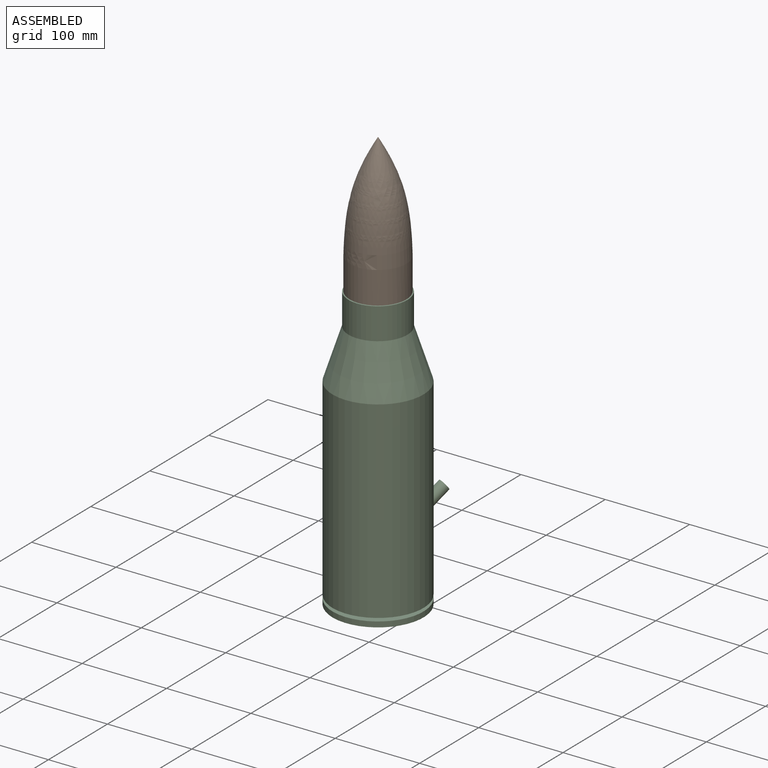
[diagram: assembled view]
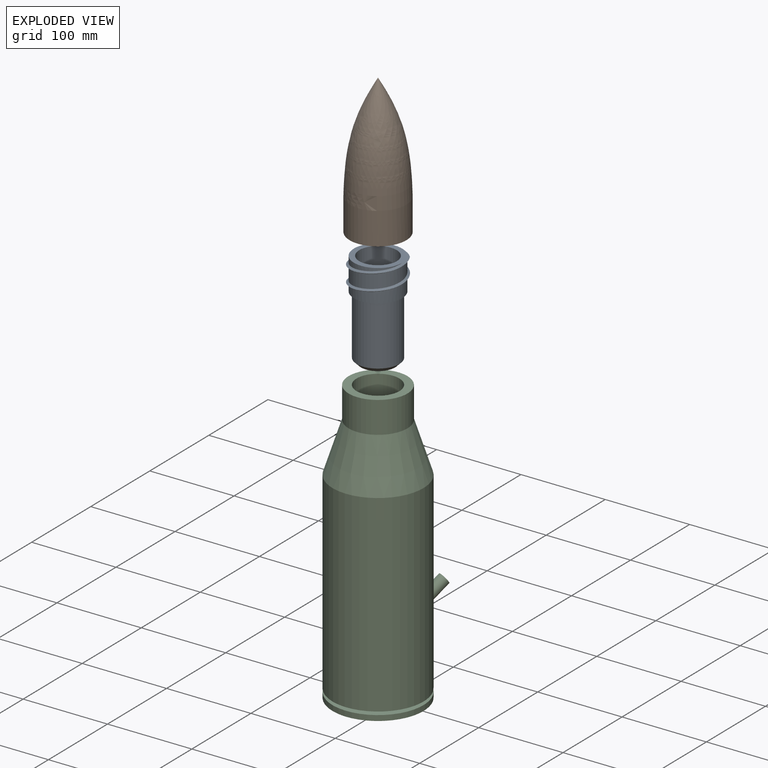
[diagram: exploded view]
GUIDED TOUR — MATED ASSEMBLY (Onshape document 4f5fb4d5b4be294fd91af29c, AutoMate assembly 4f5fb4d5b4be294fd91af29c_5ae8475b313ed0483757e820_fd76b3d57cff5a007c0db33c_default)

This assembly has 3 components, labeled P0..P2 below (a component is one placed occurrence of a part; the same part can appear more than once), held together by 2 mates. A mate is a constraint between two components; its type names the relative motion it leaves free:
  CYLINDRICAL — leaves both rotation about and translation along the listed axis free,
  SLIDER — leaves translation along the listed axis free.
Axis/direction vectors are unit vectors and 'through' points are millimeter coordinates, both in the assembly's world frame.

MATES
  1. SLIDER "Slider 1": P0 <-> P2, axis (0.000, 0.000, -1.000) through (290.09, -513.39, -215.30) mm
  2. CYLINDRICAL "Cylindrical 1": P1 <-> P0, axis (0.000, 0.000, -1.000) through (290.09, -513.39, -138.84) mm

ASSEMBLY ORDER
  1. P0 — the base component [order heuristic]
  2. P1 [order heuristic]
  3. P2 [order heuristic]
Order-tag legend:
  [order heuristic] — this assembly is geometrically interlocked (no collision-free removal order exists), so components are listed in mate-graph order; insertion feasibility is not verified.

Of the 3 components, 1 carries the full construction recipe — the FeatureScript program that regenerates the part's solid from scratch; the rest are supplied as boundary geometry only.
Each toured component is shown spotlighted twice — in the assembled view, then in the exploded view, where a leader line traces a displaced component back to its assembled socket (saturated green if recipe-attached, orange if geometry-only; every other component desaturated gray) — followed by its recipe or geometry summary and the mates that hold it.
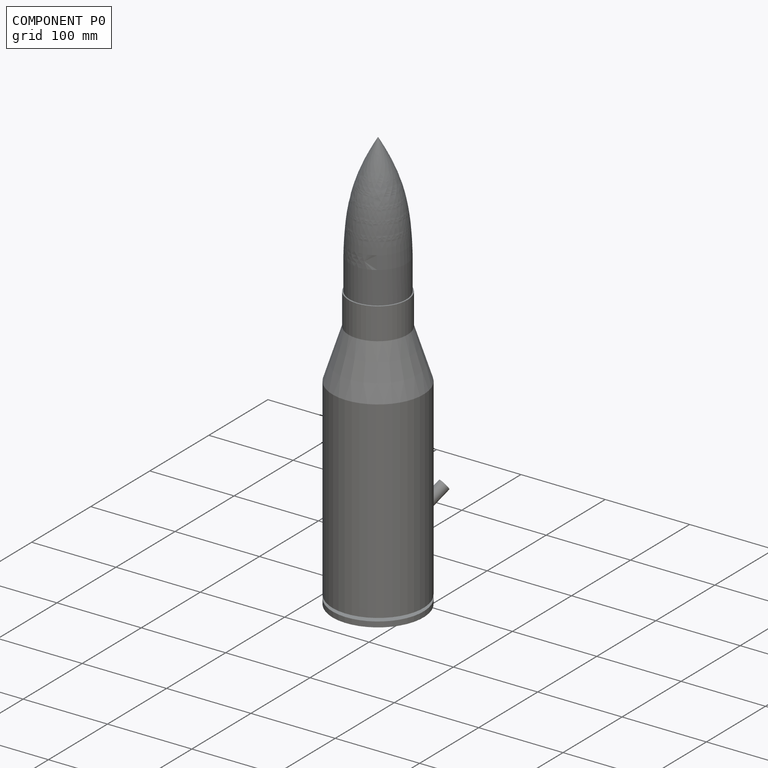
[diagram: component P0 — assembled]
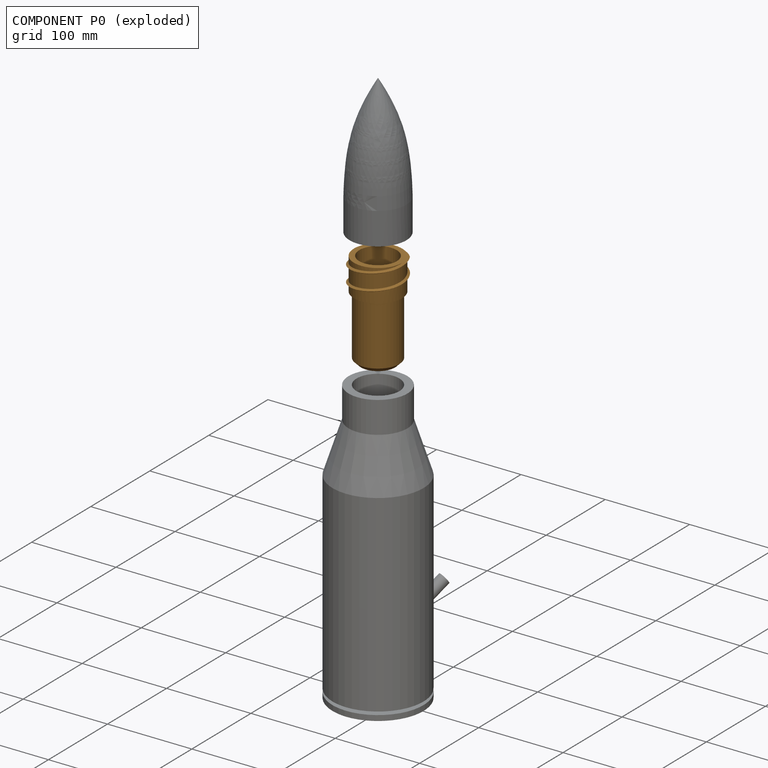
[diagram: component P0 — exploded]
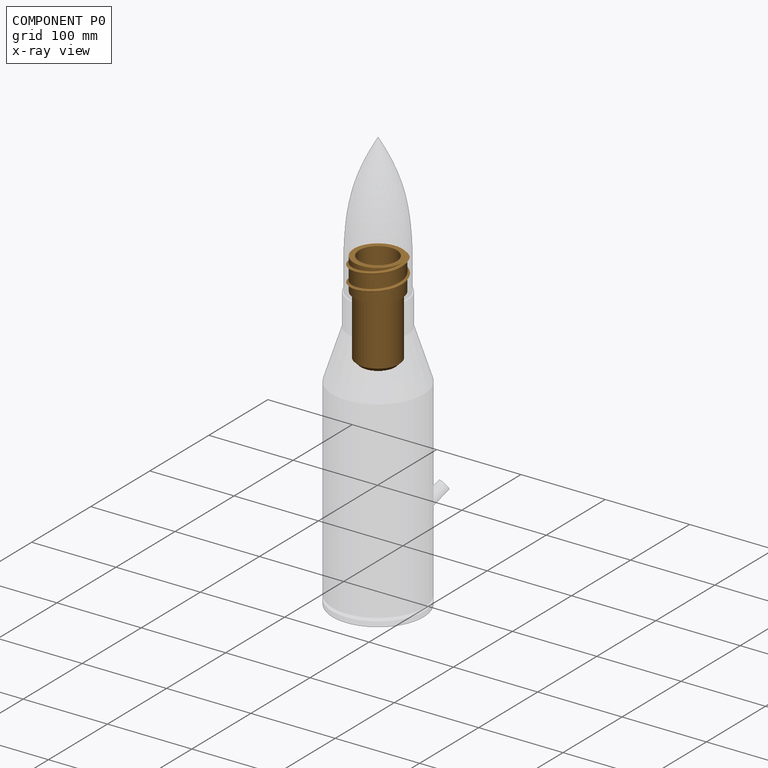
[diagram: component P0 — x-ray view]
COMPONENT P0 — geometry summary (no construction recipe available for this part):
  bounding box: 116.3 x 65.4 x 62.2 mm
  B-rep topology: 1 solid, 13 faces, 50 edges
  volume: 79113 mm^3 (17% of its bounding box)
Held by: SLIDER mate "Slider 1" to P2; CYLINDRICAL mate "Cylindrical 1" to P1.
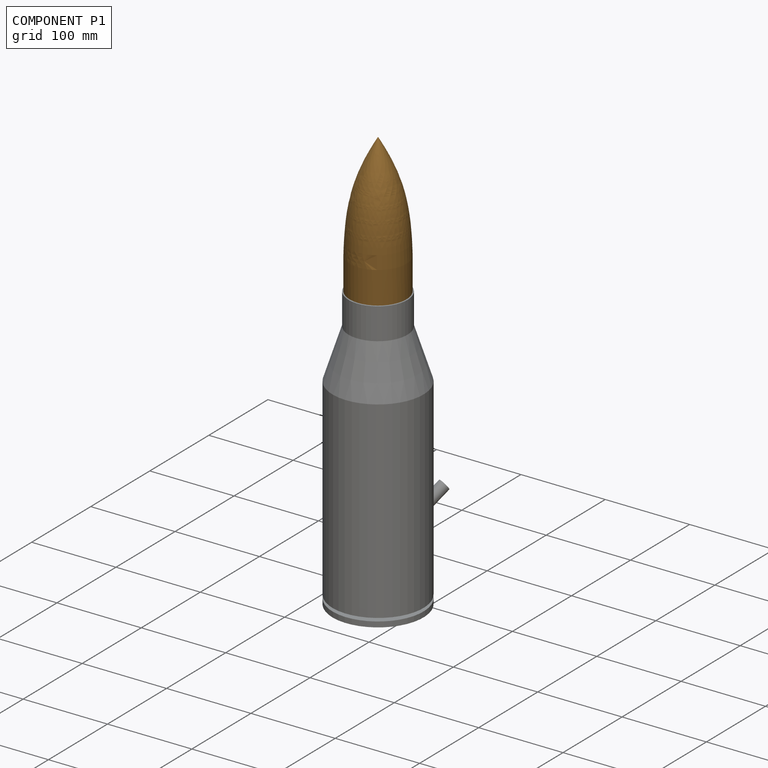
[diagram: component P1 — assembled]
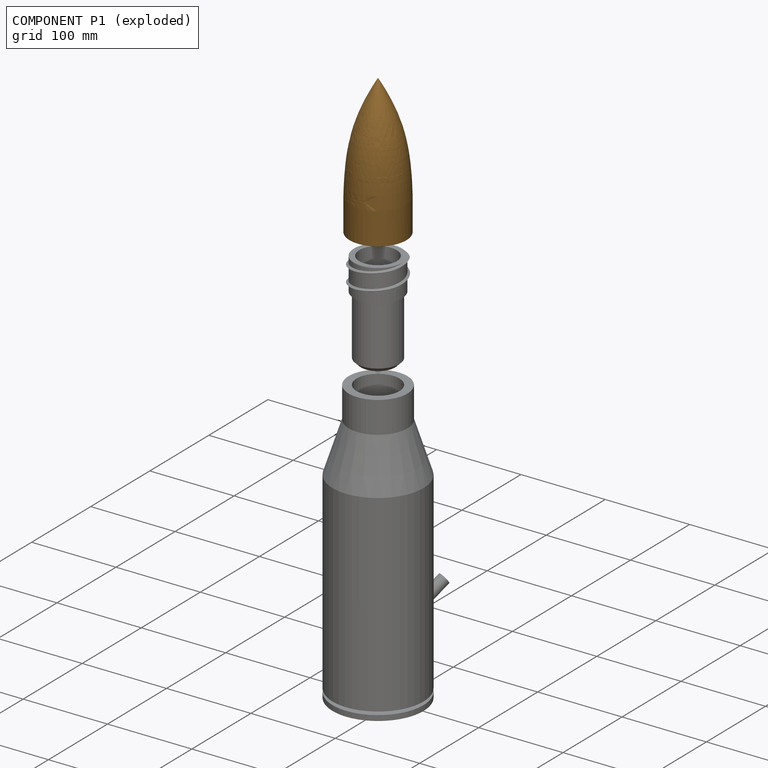
[diagram: component P1 — exploded]
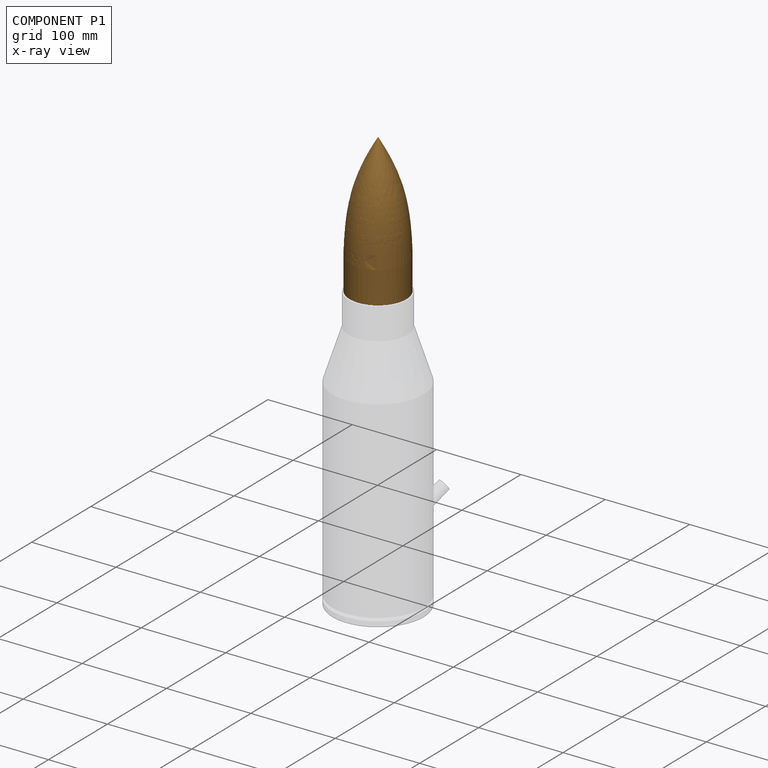
[diagram: component P1 — x-ray view]
COMPONENT P1 — geometry summary (no construction recipe available for this part):
  bounding box: 168.3 x 67.3 x 67.3 mm
  B-rep topology: 1 solid, 11 faces, 57 edges
  volume: 272627 mm^3 (36% of its bounding box)
Held by: CYLINDRICAL mate "Cylindrical 1" to P0.
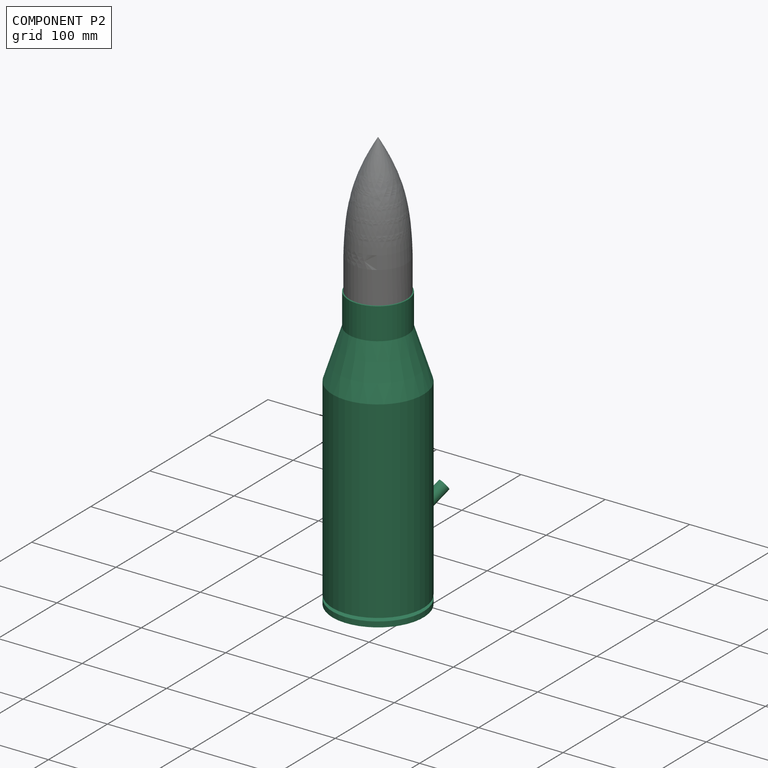
[diagram: component P2 — assembled]
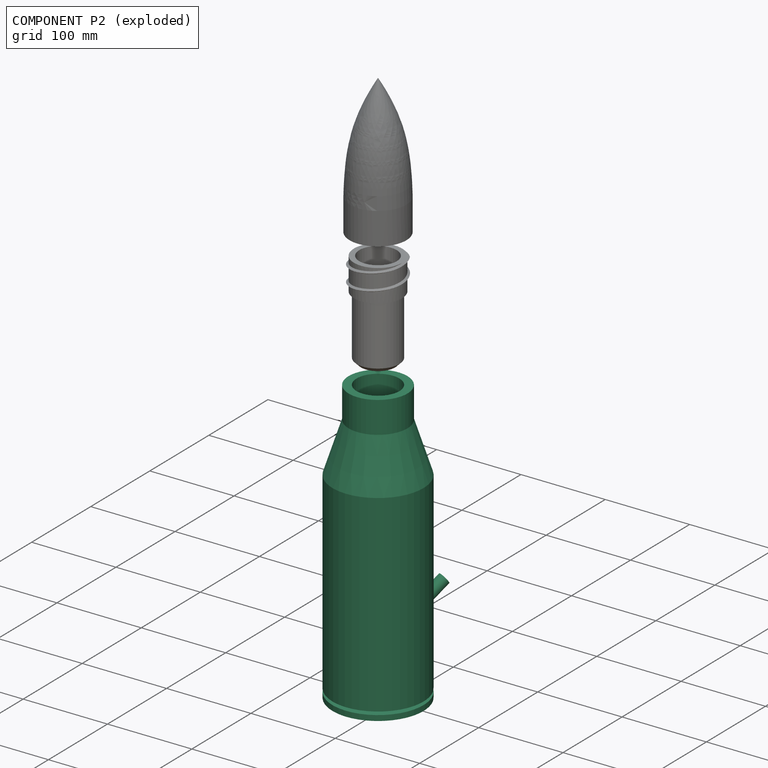
[diagram: component P2 — exploded]
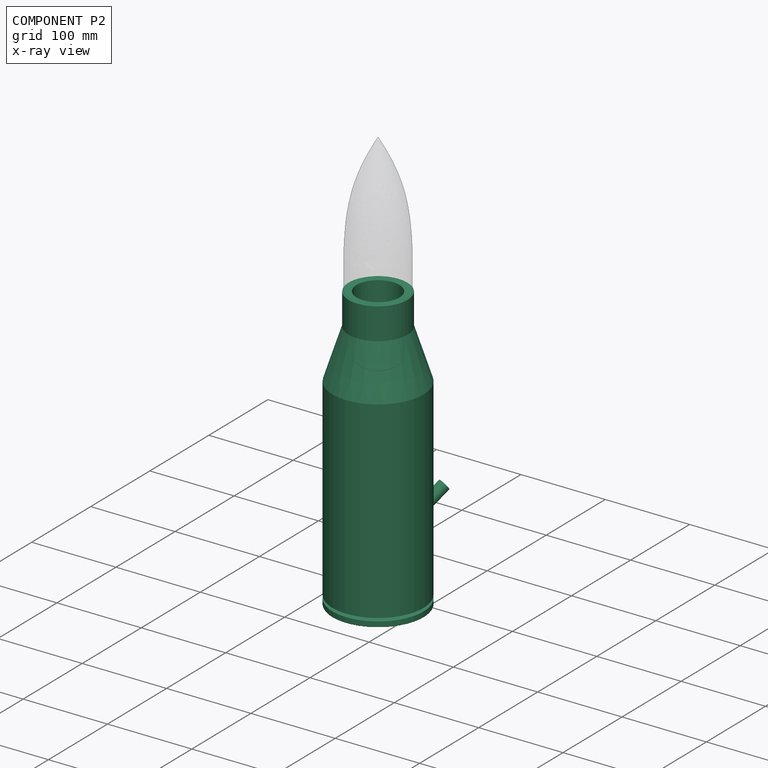
[diagram: component P2 — x-ray view]
COMPONENT P2 — recipe-attached (CADFS 00739780, mesh-verified: the recipe's output STEP matches this component's geometry to below the mesh-comparison resolution (tessellation chordal tolerance ~0.565 mm)).
Held by: SLIDER mate "Slider 1" to P0.
Construction recipe (FeatureScript — the CAD program that rebuilds this solid; sketch coordinates are in the units given by the * unit suffixes, e.g. mm):

FeatureScript 1977;
import(path : "onshape/std/geometry.fs", version : "1977.0");
import(path : "onshape/std/common.fs", version : "1977.0");
const mm = millimeter;
const VERTEX = EntityType.VERTEX;
const EDGE = EntityType.EDGE;
const FACE = EntityType.FACE;
const BODY = EntityType.BODY;
function v(x, y){return vector(x, y);}
function OD(order){return orderDisambiguation(order);}
function OSD(set){return originalSetDisambiguation(set);}
function TD(topology){return topologyDisambiguation(topology);}
function TDD(query){return trueDependencyDisambiguation(query);}
function sQuery(a, b, c) {return sketchEntityQuery(a, b, c);}

annotation { "Feature Type Name" : "Feature", "Feature Type Description" : "" }
export const myFeature = defineFeature(function(context is Context, id is Id, definition is map)
    precondition{}
    {
        {
            var Q0;
            Q0=qCreatedBy(makeId("Right.planeOp"),FACE);
            var sketch = newSketch(context, id + "F0", { "sketchPlane" : qUnion([Q0])});
            skLineSegment(sketch, "E0", {"start": v(0, -185.06) * mm, "end": v(53.98, -185.06) * mm});
            skLineSegment(sketch, "E1", {"start": v(53.98, -185.06) * mm, "end": v(53.98, -178.7) * mm});
            skLineSegment(sketch, "E2", {"start": v(53.98, -178.7) * mm, "end": v(33.86, -178.7) * mm});
            skLineSegment(sketch, "E3", {"start": v(33.86, -178.7) * mm, "end": v(33.86, -174.9) * mm});
            skLineSegment(sketch, "E4", {"start": v(33.86, -174.9) * mm, "end": v(53.98, -174.9) * mm});
            skLineSegment(sketch, "E5", {"start": v(53.98, -174.9) * mm, "end": v(53.98, 53.85) * mm});
            skLineSegment(sketch, "E6", {"start": v(53.98, 53.85) * mm, "end": v(34.92, 112.76) * mm});
            skLineSegment(sketch, "E7", {"start": v(34.92, 112.76) * mm, "end": v(34.92, 150.1) * mm});
            skLineSegment(sketch, "E8.0", {"start": v(25.4, 111.26) * mm, "end": v(25.4, 150.1) * mm});
            skLineSegment(sketch, "E8.1", {"start": v(44.45, 52.35) * mm, "end": v(25.4, 111.26) * mm});
            skLineSegment(sketch, "E8.2", {"start": v(44.45, -165.37) * mm, "end": v(44.45, 52.35) * mm});
            skLineSegment(sketch, "E9", {"start": v(25.4, 150.1) * mm, "end": v(34.92, 150.1) * mm});
            skLineSegment(sketch, "E10", {"start": v(44.45, -165.37) * mm, "end": v(33.86, -174.9) * mm});
            skLineSegment(sketch, "E11", {"start": v(33.86, -174.9) * mm, "end": v(0, -174.9) * mm});
            skLineSegment(sketch, "E12", {"start": v(0, -174.9) * mm, "end": v(0, -185.06) * mm});
            skLineSegment(sketch, "E13", {"start": v(44.45, -165.37) * mm, "end": v(0, -165.37) * mm});
            skLineSegment(sketch, "E14", {"start": v(0, -165.37) * mm, "end": v(0, -174.9) * mm});
            skLineSegment(sketch, "E15", {"start": v(0, -165.37) * mm, "end": v(0, 183.27) * mm, "construction": true});
            skSolve(sketch);
        }
        {
            var Q0;
            Q0 = qSketchRegion(id + "F0", true);
            var Q1;
            Q1=sQuery(id+"F0.wireOp",EDGE,"E15");
            revolve(context, id + "F1", {"surfaceOperationType" : NewSurfaceOperationType.NEW, "entities" : qUnion([Q0]), "axis" : qUnion([Q1]), "revolveType" : RevolveType.FULL});
        }
        {
            var Q0;
            Q0=qCreatedBy(makeId("Right.planeOp"),FACE);
            var sketch = newSketch(context, id + "F2", { "sketchPlane" : qUnion([Q0])});
            skLineSegment(sketch, "E16", {"start": v(24.46, -105.07) * mm, "end": v(71.64, -70.13) * mm});
            skLineSegment(sketch, "E17", {"start": v(71.06, -75.13) * mm, "end": v(30.63, -105.07) * mm});
            skLineSegment(sketch, "E18", {"start": v(24.46, -105.07) * mm, "end": v(26.64, -108) * mm});
            skLineSegment(sketch, "E19", {"start": v(26.64, -108) * mm, "end": v(30.63, -105.07) * mm});
            skLineSegment(sketch, "E20", {"start": v(71.64, -70.13) * mm, "end": v(73.8, -73.05) * mm});
            skLineSegment(sketch, "E21", {"start": v(73.8, -73.05) * mm, "end": v(71.06, -75.13) * mm});
            skLineSegment(sketch, "E22", {"start": v(76.4, -75.13) * mm, "end": v(28.42, -110.65) * mm, "construction": true});
            skSolve(sketch);
        }
        {
            var Q0;
            Q0 = qSketchRegion(id + "F2", true);
            var Q1;
            Q1=sQuery(id+"F2.wireOp",EDGE,"E22");
            revolve(context, id + "F3", {"operationType" : NewBodyOperationType.ADD, "surfaceOperationType" : NewSurfaceOperationType.NEW, "entities" : qUnion([Q0]), "axis" : qUnion([Q1]), "revolveType" : RevolveType.FULL});
        }
        {
            var Q0;
            Q0=makeQuery(id+"F3.opRevolve","SWEPT_FACE",FACE,{"disambiguationData":[OSD([sQuery(id+"F2.wireOp",EDGE,"E20")])]});
            var sketch = newSketch(context, id + "F4", { "sketchPlane" : qUnion([Q0])});
            skCircle(sketch, "E23", {"center": v(0, -105.84) * mm, "radius": 2.15 * mm});
            skSolve(sketch);
        }
        {
            var Q0;
            Q0 = qSketchRegion(id + "F4", true);
            extrude(context, id + "F5", {"entities" : qUnion([Q0]), "operationType" : NewBodyOperationType.REMOVE, "oppositeDirection" : true, "depth" : 50.8 * mm, "offsetDistance" : 25.4 * mm});
        }
    });
PROVENANCE & LICENSES
Assembly (occurrences, transforms, mates, per-part STEP geometry): AutoMate dataset, Zenodo record 7776208, CC0.
Construction recipes: CADFS (HuggingFace VladPyatov/CADFS, CC-BY-4.0, layered over the ABC dataset), FeatureScript reconstruction programs keyed by ABC model id.
Join: ABC meta listings map ABC model id -> Onshape documentId; within a shared document, parts are matched by geometric signature (bounding-box dims + volume at 0.1% relative tolerance, exact B-rep face/solid counts).
Verification: 1 of this assembly's 3 components carries a recipe attachment, and every attachment is mesh-verified: the CADFS STEP and the AutoMate member STEP were compared as meshes in their shared local frame (symmetric sampled-point-to-mesh distance); worst across the 1 attachment: below the mesh-comparison resolution (tessellation chordal tolerance ~0.565 mm) on a 377 mm part.
Renders: orthographic iso camera (az 35 / el 25); the floor grid conveys scale (grid pitch printed in each image; no ruler). In the exploded view each component is displaced by its stored offset vector: the offsets alone carry the explosion direction (mate normal/axis signs are not orientation cues and do not encode it), and separation distances are assigned per mate-chain, not proportionally to assembly-order depth.
